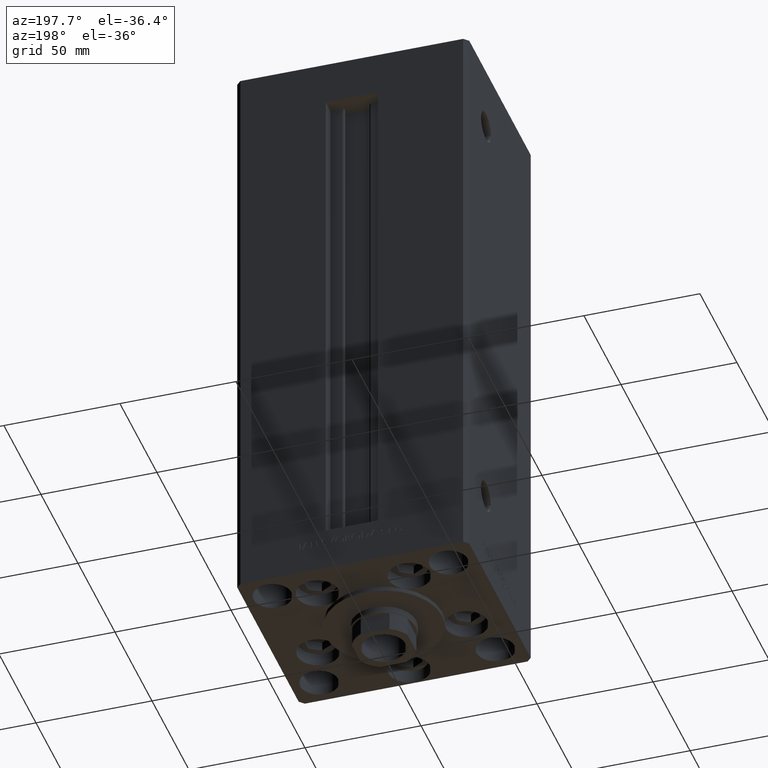
[diagram: clean part render]
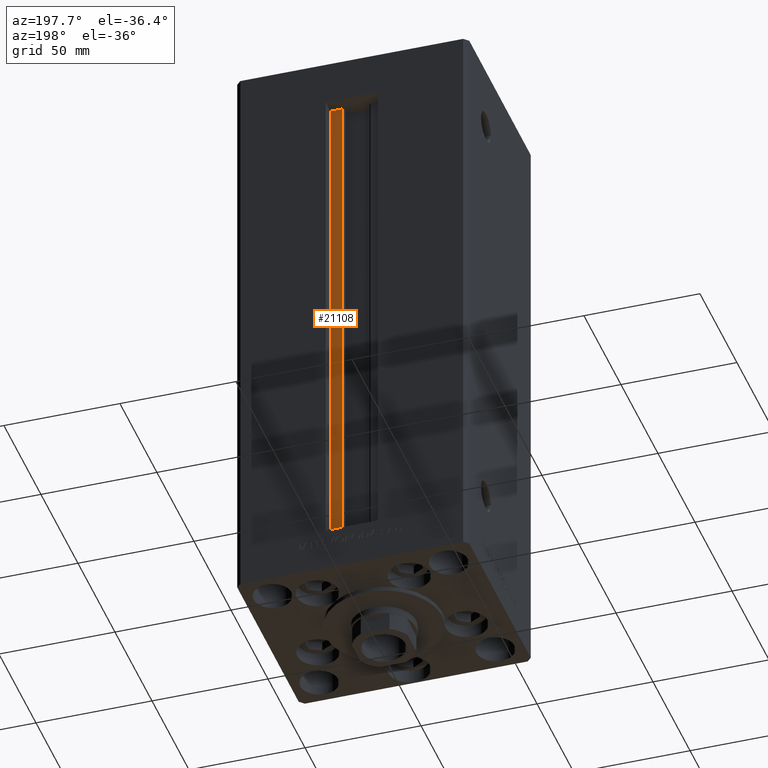
[diagram: same view with one face highlighted and labeled with its STEP entity id]
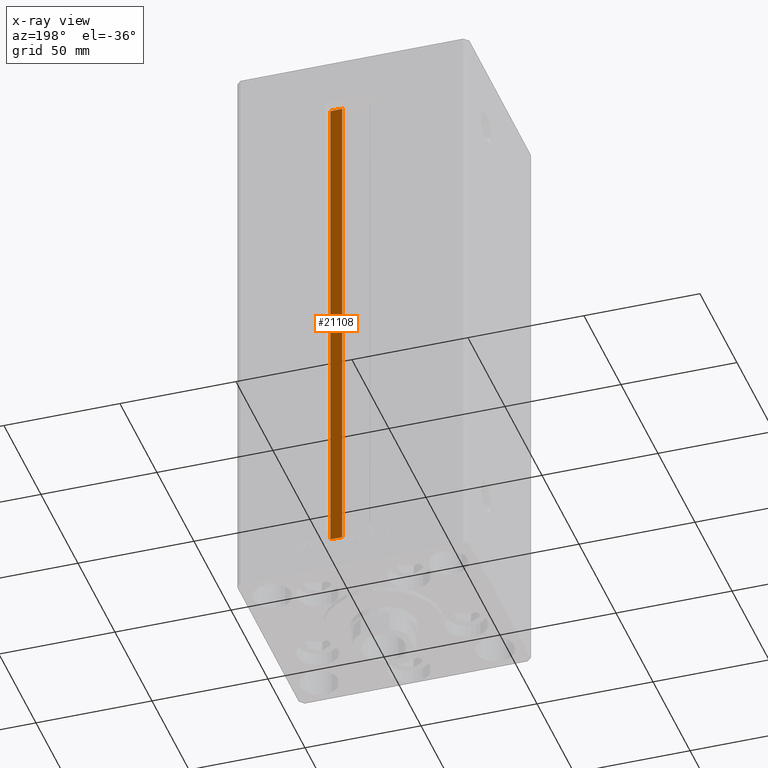
[diagram: x-ray of the same camera — body ghosted, the highlighted face saturated]
A machine part, auxiliary view. The second image highlights one B-rep face of the part: STEP entity #21108.
The next image is the same camera in x-ray: the body ghosted, the highlighted face saturated — about 0% of this face is hidden behind the body in this view.
In plain terms, the highlighted planar face has unit normal (0, -1, 0).
Its self-contained STEP definition (entity closure, byte-faithful):
#252 = VECTOR ( 'NONE', #17025, 1000.000000000000000 ) ;
#1558 = CARTESIAN_POINT ( 'NONE',  ( 6.183333333333997928, 36.99999999999999289, 0.000000000000000000 ) ) ;
#1654 = VECTOR ( 'NONE', #44837, 1000.000000000000000 ) ;
#1964 = ORIENTED_EDGE ( 'NONE', *, *, #46495, .F. ) ;
#2887 = CARTESIAN_POINT ( 'NONE',  ( 0.000000000000000000, 36.99999999999999289, 218.5000000000000000 ) ) ;
#6932 = DIRECTION ( 'NONE',  ( -1.000000000000000000, 0.000000000000000000, 0.000000000000000000 ) ) ;
#7733 = EDGE_CURVE ( 'NONE', #35894, #37015, #20060, .T. ) ;
#10995 = CARTESIAN_POINT ( 'NONE',  ( 6.183333333333997928, 36.99999999999999289, 0.000000000000000000 ) ) ;
#12497 = LINE ( 'NONE', #31998, #252 ) ;
#15043 = PLANE ( 'NONE',  #44738 ) ;
#17025 = DIRECTION ( 'NONE',  ( -0.000000000000000000, -0.000000000000000000, 1.000000000000000000 ) ) ;
#17724 = LINE ( 'NONE', #1558, #1654 ) ;
#19238 = EDGE_CURVE ( 'NONE', #36582, #21528, #12497, .T. ) ;
#19304 = CARTESIAN_POINT ( 'NONE',  ( 6.183333333333997928, 36.99999999999999289, 218.5000000000000000 ) ) ;
#19679 = EDGE_LOOP ( 'NONE', ( #28300, #1964, #37036, #36935 ) ) ;
#20060 = LINE ( 'NONE', #20557, #30380 ) ;
#20557 = CARTESIAN_POINT ( 'NONE',  ( 6.183333333333997928, 36.99999999999999289, 0.000000000000000000 ) ) ;
#21108 = ADVANCED_FACE ( 'NONE', ( #48999 ), #15043, .F. ) ;
#21528 = VERTEX_POINT ( 'NONE', #30933 ) ;
#22900 = DIRECTION ( 'NONE',  ( 0.000000000000000000, -0.000000000000000000, -1.000000000000000000 ) ) ;
#25332 = EDGE_CURVE ( 'NONE', #21528, #37015, #41627, .T. ) ;
#26963 = DIRECTION ( 'NONE',  ( -0.000000000000000000, -0.000000000000000000, 1.000000000000000000 ) ) ;
#28300 = ORIENTED_EDGE ( 'NONE', *, *, #19238, .F. ) ;
#30380 = VECTOR ( 'NONE', #26963, 1000.000000000000000 ) ;
#30933 = CARTESIAN_POINT ( 'NONE',  ( 11.24999999999999822, 36.99999999999999289, 218.5000000000000000 ) ) ;
#31031 = VECTOR ( 'NONE', #6932, 1000.000000000000000 ) ;
#31998 = CARTESIAN_POINT ( 'NONE',  ( 11.24999999999999822, 36.99999999999999289, 0.000000000000000000 ) ) ;
#34098 = CARTESIAN_POINT ( 'NONE',  ( 6.183333333333997928, 36.99999999999999289, 0.000000000000000000 ) ) ;
#35894 = VERTEX_POINT ( 'NONE', #34098 ) ;
#36582 = VERTEX_POINT ( 'NONE', #38593 ) ;
#36935 = ORIENTED_EDGE ( 'NONE', *, *, #25332, .F. ) ;
#37015 = VERTEX_POINT ( 'NONE', #19304 ) ;
#37036 = ORIENTED_EDGE ( 'NONE', *, *, #7733, .T. ) ;
#38593 = CARTESIAN_POINT ( 'NONE',  ( 11.24999999999999822, 36.99999999999999289, 0.000000000000000000 ) ) ;
#41627 = LINE ( 'NONE', #2887, #31031 ) ;
#44738 = AXIS2_PLACEMENT_3D ( 'NONE', #10995, #45448, #22900 ) ;
#44837 = DIRECTION ( 'NONE',  ( 1.000000000000000000, 0.000000000000000000, 0.000000000000000000 ) ) ;
#45448 = DIRECTION ( 'NONE',  ( 0.000000000000000000, -1.000000000000000000, 0.000000000000000000 ) ) ;
#46495 = EDGE_CURVE ( 'NONE', #35894, #36582, #17724, .T. ) ;
#48999 = FACE_OUTER_BOUND ( 'NONE', #19679, .T. ) ;